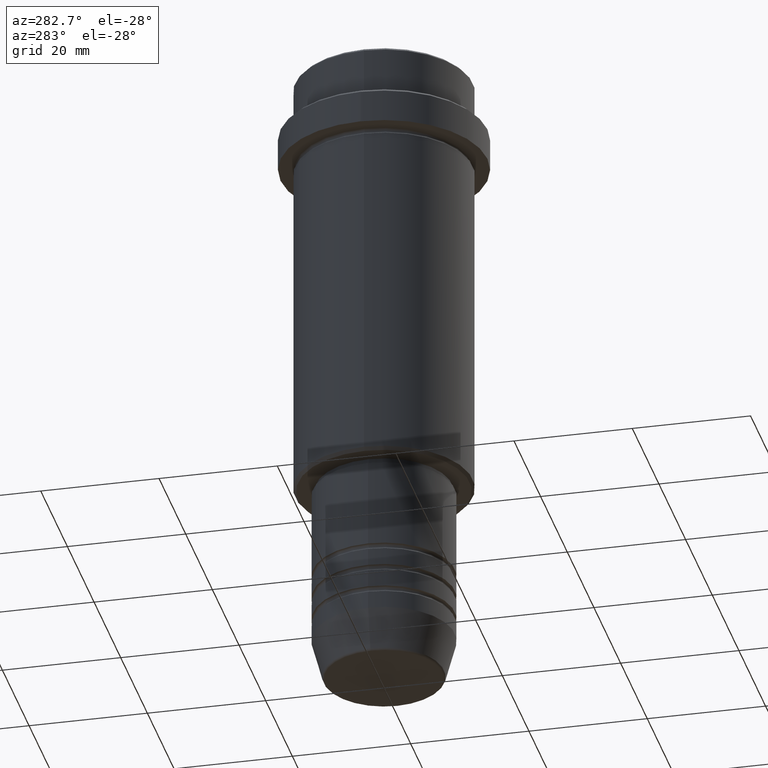
[diagram: clean part render]
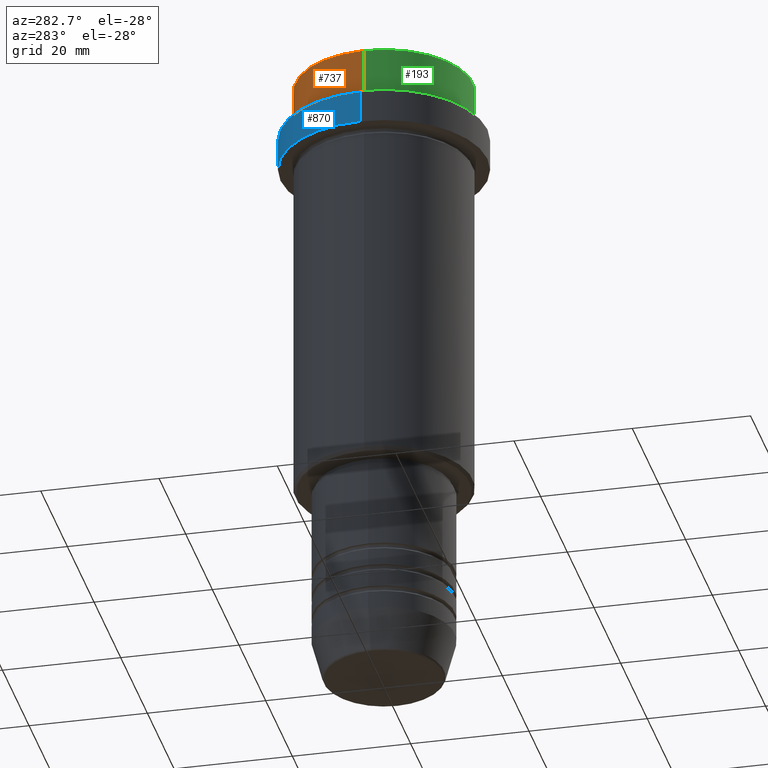
[diagram: same view with three faces highlighted in distinct colors, each labeled with its STEP entity id]
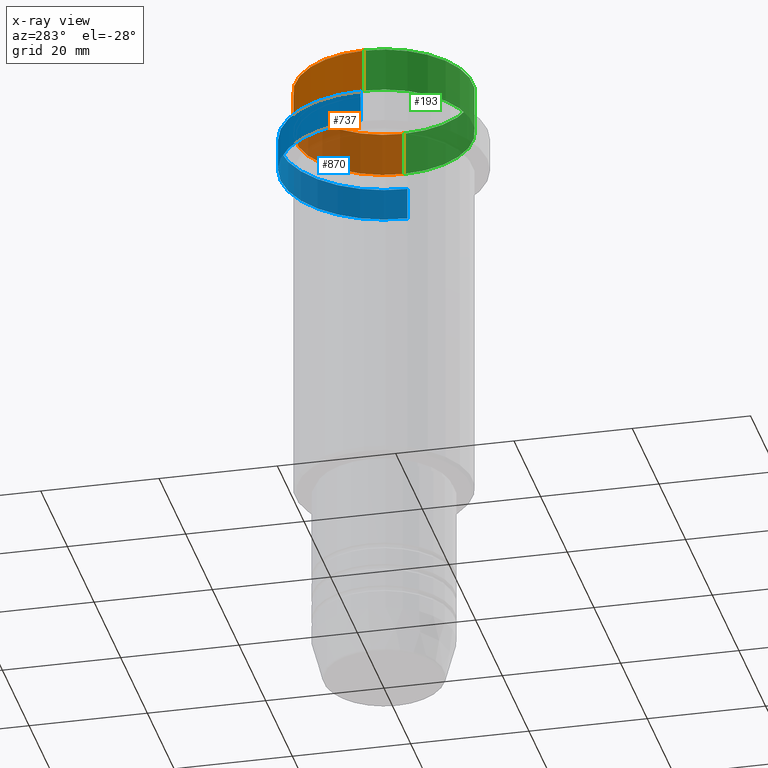
[diagram: x-ray of the same camera — body ghosted, the three highlighted faces saturated]
A machine part, auxiliary view with three faces highlighted in distinct colors.
The next image is the same camera in x-ray (body ghosted, the three faces saturated) — at least one of them is partly hidden behind the body in this view.
Their STEP definitions:

[orange] entity #737 — the highlighted cylindrical surface (partial cylindrical patch) has radius 15 mm, axis along (-0, -0, 1).
#30 = AXIS2_PLACEMENT_3D ( 'NONE', #1114, #144, #149 ) ;
#45 = LINE ( 'NONE', #1339, #1189 ) ;
#106 = CARTESIAN_POINT ( 'NONE',  ( 0.000000000000000000, 0.000000000000000000, -0.4999999999999692468 ) ) ;
#144 = DIRECTION ( 'NONE',  ( -0.000000000000000000, -0.000000000000000000, 1.000000000000000000 ) ) ;
#149 = DIRECTION ( 'NONE',  ( 1.000000000000000000, 0.000000000000000000, 0.000000000000000000 ) ) ;
#159 = ORIENTED_EDGE ( 'NONE', *, *, #380, .T. ) ;
#197 = DIRECTION ( 'NONE',  ( 1.000000000000000000, 0.000000000000000000, 0.000000000000000000 ) ) ;
#203 = AXIS2_PLACEMENT_3D ( 'NONE', #106, #1167, #197 ) ;
#214 = VERTEX_POINT ( 'NONE', #1348 ) ;
#292 = CIRCLE ( 'NONE', #30, 15.00000000000000000 ) ;
#345 = CARTESIAN_POINT ( 'NONE',  ( -15.00000000000000000, 1.836970198721029589E-15, -0.4999999999999692468 ) ) ;
#380 = EDGE_CURVE ( 'NONE', #214, #635, #292, .T. ) ;
#386 = VECTOR ( 'NONE', #771, 1000.000000000000000 ) ;
#402 = ORIENTED_EDGE ( 'NONE', *, *, #438, .F. ) ;
#438 = EDGE_CURVE ( 'NONE', #214, #701, #45, .T. ) ;
#505 = CARTESIAN_POINT ( 'NONE',  ( -15.00000000000000000, 1.836970198721029589E-15, -7.999999999999998224 ) ) ;
#519 = CARTESIAN_POINT ( 'NONE',  ( 0.000000000000000000, 0.000000000000000000, 0.000000000000000000 ) ) ;
#521 = AXIS2_PLACEMENT_3D ( 'NONE', #519, #1304, #1060 ) ;
#546 = ORIENTED_EDGE ( 'NONE', *, *, #1094, .T. ) ;
#635 = VERTEX_POINT ( 'NONE', #505 ) ;
#641 = CARTESIAN_POINT ( 'NONE',  ( -15.00000000000000000, 1.836970198721029589E-15, 0.000000000000000000 ) ) ;
#701 = VERTEX_POINT ( 'NONE', #736 ) ;
#736 = CARTESIAN_POINT ( 'NONE',  ( 15.00000000000000000, 0.000000000000000000, -0.4999999999999692468 ) ) ;
#737 = ADVANCED_FACE ( 'NONE', ( #869 ), #1404, .T. ) ;
#769 = EDGE_CURVE ( 'NONE', #823, #701, #1294, .T. ) ;
#771 = DIRECTION ( 'NONE',  ( -0.000000000000000000, -0.000000000000000000, 1.000000000000000000 ) ) ;
#797 = DIRECTION ( 'NONE',  ( -0.000000000000000000, -0.000000000000000000, 1.000000000000000000 ) ) ;
#823 = VERTEX_POINT ( 'NONE', #345 ) ;
#869 = FACE_OUTER_BOUND ( 'NONE', #1319, .T. ) ;
#990 = ORIENTED_EDGE ( 'NONE', *, *, #769, .T. ) ;
#1060 = DIRECTION ( 'NONE',  ( 1.000000000000000000, 0.000000000000000000, 0.000000000000000000 ) ) ;
#1094 = EDGE_CURVE ( 'NONE', #635, #823, #1165, .T. ) ;
#1114 = CARTESIAN_POINT ( 'NONE',  ( 0.000000000000000000, 0.000000000000000000, -7.999999999999998224 ) ) ;
#1165 = LINE ( 'NONE', #641, #386 ) ;
#1167 = DIRECTION ( 'NONE',  ( 0.000000000000000000, 0.000000000000000000, -1.000000000000000000 ) ) ;
#1189 = VECTOR ( 'NONE', #797, 1000.000000000000000 ) ;
#1294 = CIRCLE ( 'NONE', #203, 15.00000000000000000 ) ;
#1304 = DIRECTION ( 'NONE',  ( -0.000000000000000000, -0.000000000000000000, 1.000000000000000000 ) ) ;
#1319 = EDGE_LOOP ( 'NONE', ( #159, #546, #990, #402 ) ) ;
#1339 = CARTESIAN_POINT ( 'NONE',  ( 15.00000000000000000, 0.000000000000000000, 0.000000000000000000 ) ) ;
#1348 = CARTESIAN_POINT ( 'NONE',  ( 15.00000000000000000, 0.000000000000000000, -7.999999999999998224 ) ) ;
#1404 = CYLINDRICAL_SURFACE ( 'NONE', #521, 15.00000000000000000 ) ;

[blue] entity #870 — the highlighted cylindrical surface (partial cylindrical patch) has radius 17.5 mm, axis along (-0, -0, 1).
#39 = DIRECTION ( 'NONE',  ( 1.000000000000000000, 0.000000000000000000, 0.000000000000000000 ) ) ;
#52 = VERTEX_POINT ( 'NONE', #1190 ) ;
#57 = DIRECTION ( 'NONE',  ( -0.000000000000000000, -0.000000000000000000, 1.000000000000000000 ) ) ;
#68 = CARTESIAN_POINT ( 'NONE',  ( 17.50000000000000000, 0.000000000000000000, 0.000000000000000000 ) ) ;
#71 = DIRECTION ( 'NONE',  ( -0.000000000000000000, -0.000000000000000000, 1.000000000000000000 ) ) ;
#103 = EDGE_CURVE ( 'NONE', #52, #1181, #367, .T. ) ;
#116 = FACE_OUTER_BOUND ( 'NONE', #331, .T. ) ;
#178 = CARTESIAN_POINT ( 'NONE',  ( 0.000000000000000000, 0.000000000000000000, -15.00000000000000000 ) ) ;
#225 = DIRECTION ( 'NONE',  ( -0.000000000000000000, -0.000000000000000000, 1.000000000000000000 ) ) ;
#276 = CARTESIAN_POINT ( 'NONE',  ( 0.000000000000000000, 0.000000000000000000, 0.000000000000000000 ) ) ;
#302 = DIRECTION ( 'NONE',  ( 0.000000000000000000, 0.000000000000000000, -1.000000000000000000 ) ) ;
#311 = ORIENTED_EDGE ( 'NONE', *, *, #553, .F. ) ;
#331 = EDGE_LOOP ( 'NONE', ( #913, #844, #1342, #311 ) ) ;
#335 = AXIS2_PLACEMENT_3D ( 'NONE', #711, #302, #39 ) ;
#367 = LINE ( 'NONE', #1224, #648 ) ;
#385 = AXIS2_PLACEMENT_3D ( 'NONE', #276, #773, #491 ) ;
#419 = CARTESIAN_POINT ( 'NONE',  ( 17.50000000000000000, 0.000000000000000000, -9.500000000000014211 ) ) ;
#491 = DIRECTION ( 'NONE',  ( 1.000000000000000000, 0.000000000000000000, 0.000000000000000000 ) ) ;
#553 = EDGE_CURVE ( 'NONE', #809, #732, #942, .T. ) ;
#561 = CARTESIAN_POINT ( 'NONE',  ( 17.50000000000000000, 0.000000000000000000, -15.00000000000000000 ) ) ;
#588 = AXIS2_PLACEMENT_3D ( 'NONE', #178, #71, #1377 ) ;
#621 = EDGE_CURVE ( 'NONE', #1181, #732, #786, .T. ) ;
#644 = CARTESIAN_POINT ( 'NONE',  ( -17.50000000000000000, 2.143131898507868248E-15, -9.500000000000014211 ) ) ;
#648 = VECTOR ( 'NONE', #225, 1000.000000000000000 ) ;
#655 = CYLINDRICAL_SURFACE ( 'NONE', #385, 17.50000000000000000 ) ;
#711 = CARTESIAN_POINT ( 'NONE',  ( 0.000000000000000000, 0.000000000000000000, -9.500000000000014211 ) ) ;
#732 = VERTEX_POINT ( 'NONE', #419 ) ;
#773 = DIRECTION ( 'NONE',  ( -0.000000000000000000, -0.000000000000000000, 1.000000000000000000 ) ) ;
#786 = CIRCLE ( 'NONE', #335, 17.50000000000000000 ) ;
#809 = VERTEX_POINT ( 'NONE', #561 ) ;
#844 = ORIENTED_EDGE ( 'NONE', *, *, #103, .T. ) ;
#870 = ADVANCED_FACE ( 'NONE', ( #116 ), #655, .T. ) ;
#913 = ORIENTED_EDGE ( 'NONE', *, *, #1073, .T. ) ;
#942 = LINE ( 'NONE', #68, #1408 ) ;
#1045 = CIRCLE ( 'NONE', #588, 17.50000000000000000 ) ;
#1073 = EDGE_CURVE ( 'NONE', #809, #52, #1045, .T. ) ;
#1181 = VERTEX_POINT ( 'NONE', #644 ) ;
#1190 = CARTESIAN_POINT ( 'NONE',  ( -17.50000000000000000, 2.143131898507868248E-15, -15.00000000000000000 ) ) ;
#1224 = CARTESIAN_POINT ( 'NONE',  ( -17.50000000000000000, 2.143131898507868248E-15, 0.000000000000000000 ) ) ;
#1342 = ORIENTED_EDGE ( 'NONE', *, *, #621, .T. ) ;
#1377 = DIRECTION ( 'NONE',  ( 1.000000000000000000, 0.000000000000000000, 0.000000000000000000 ) ) ;
#1408 = VECTOR ( 'NONE', #57, 1000.000000000000000 ) ;

[green] entity #193 — the highlighted cylindrical surface (partial cylindrical patch) has radius 15 mm, axis along (-0, -0, 1).
#45 = LINE ( 'NONE', #1339, #1189 ) ;
#53 = DIRECTION ( 'NONE',  ( 0.000000000000000000, 0.000000000000000000, -1.000000000000000000 ) ) ;
#66 = AXIS2_PLACEMENT_3D ( 'NONE', #150, #1044, #278 ) ;
#150 = CARTESIAN_POINT ( 'NONE',  ( 0.000000000000000000, 0.000000000000000000, 0.000000000000000000 ) ) ;
#193 = ADVANCED_FACE ( 'NONE', ( #1022 ), #479, .T. ) ;
#205 = CIRCLE ( 'NONE', #1360, 15.00000000000000000 ) ;
#214 = VERTEX_POINT ( 'NONE', #1348 ) ;
#224 = AXIS2_PLACEMENT_3D ( 'NONE', #460, #53, #601 ) ;
#278 = DIRECTION ( 'NONE',  ( 1.000000000000000000, 0.000000000000000000, 0.000000000000000000 ) ) ;
#281 = ORIENTED_EDGE ( 'NONE', *, *, #438, .T. ) ;
#345 = CARTESIAN_POINT ( 'NONE',  ( -15.00000000000000000, 1.836970198721029589E-15, -0.4999999999999692468 ) ) ;
#386 = VECTOR ( 'NONE', #771, 1000.000000000000000 ) ;
#438 = EDGE_CURVE ( 'NONE', #214, #701, #45, .T. ) ;
#460 = CARTESIAN_POINT ( 'NONE',  ( 0.000000000000000000, 0.000000000000000000, -0.4999999999999692468 ) ) ;
#479 = CYLINDRICAL_SURFACE ( 'NONE', #66, 15.00000000000000000 ) ;
#505 = CARTESIAN_POINT ( 'NONE',  ( -15.00000000000000000, 1.836970198721029589E-15, -7.999999999999998224 ) ) ;
#601 = DIRECTION ( 'NONE',  ( 1.000000000000000000, 0.000000000000000000, 0.000000000000000000 ) ) ;
#635 = VERTEX_POINT ( 'NONE', #505 ) ;
#641 = CARTESIAN_POINT ( 'NONE',  ( -15.00000000000000000, 1.836970198721029589E-15, 0.000000000000000000 ) ) ;
#688 = ORIENTED_EDGE ( 'NONE', *, *, #1094, .F. ) ;
#701 = VERTEX_POINT ( 'NONE', #736 ) ;
#736 = CARTESIAN_POINT ( 'NONE',  ( 15.00000000000000000, 0.000000000000000000, -0.4999999999999692468 ) ) ;
#757 = ORIENTED_EDGE ( 'NONE', *, *, #1281, .T. ) ;
#771 = DIRECTION ( 'NONE',  ( -0.000000000000000000, -0.000000000000000000, 1.000000000000000000 ) ) ;
#797 = DIRECTION ( 'NONE',  ( -0.000000000000000000, -0.000000000000000000, 1.000000000000000000 ) ) ;
#820 = EDGE_LOOP ( 'NONE', ( #688, #757, #281, #837 ) ) ;
#823 = VERTEX_POINT ( 'NONE', #345 ) ;
#837 = ORIENTED_EDGE ( 'NONE', *, *, #851, .T. ) ;
#851 = EDGE_CURVE ( 'NONE', #701, #823, #1067, .T. ) ;
#894 = DIRECTION ( 'NONE',  ( -0.000000000000000000, -0.000000000000000000, 1.000000000000000000 ) ) ;
#1022 = FACE_OUTER_BOUND ( 'NONE', #820, .T. ) ;
#1044 = DIRECTION ( 'NONE',  ( -0.000000000000000000, -0.000000000000000000, 1.000000000000000000 ) ) ;
#1067 = CIRCLE ( 'NONE', #224, 15.00000000000000000 ) ;
#1094 = EDGE_CURVE ( 'NONE', #635, #823, #1165, .T. ) ;
#1105 = CARTESIAN_POINT ( 'NONE',  ( 0.000000000000000000, 0.000000000000000000, -7.999999999999998224 ) ) ;
#1121 = DIRECTION ( 'NONE',  ( 1.000000000000000000, 0.000000000000000000, 0.000000000000000000 ) ) ;
#1165 = LINE ( 'NONE', #641, #386 ) ;
#1189 = VECTOR ( 'NONE', #797, 1000.000000000000000 ) ;
#1281 = EDGE_CURVE ( 'NONE', #635, #214, #205, .T. ) ;
#1339 = CARTESIAN_POINT ( 'NONE',  ( 15.00000000000000000, 0.000000000000000000, 0.000000000000000000 ) ) ;
#1348 = CARTESIAN_POINT ( 'NONE',  ( 15.00000000000000000, 0.000000000000000000, -7.999999999999998224 ) ) ;
#1360 = AXIS2_PLACEMENT_3D ( 'NONE', #1105, #894, #1121 ) ;